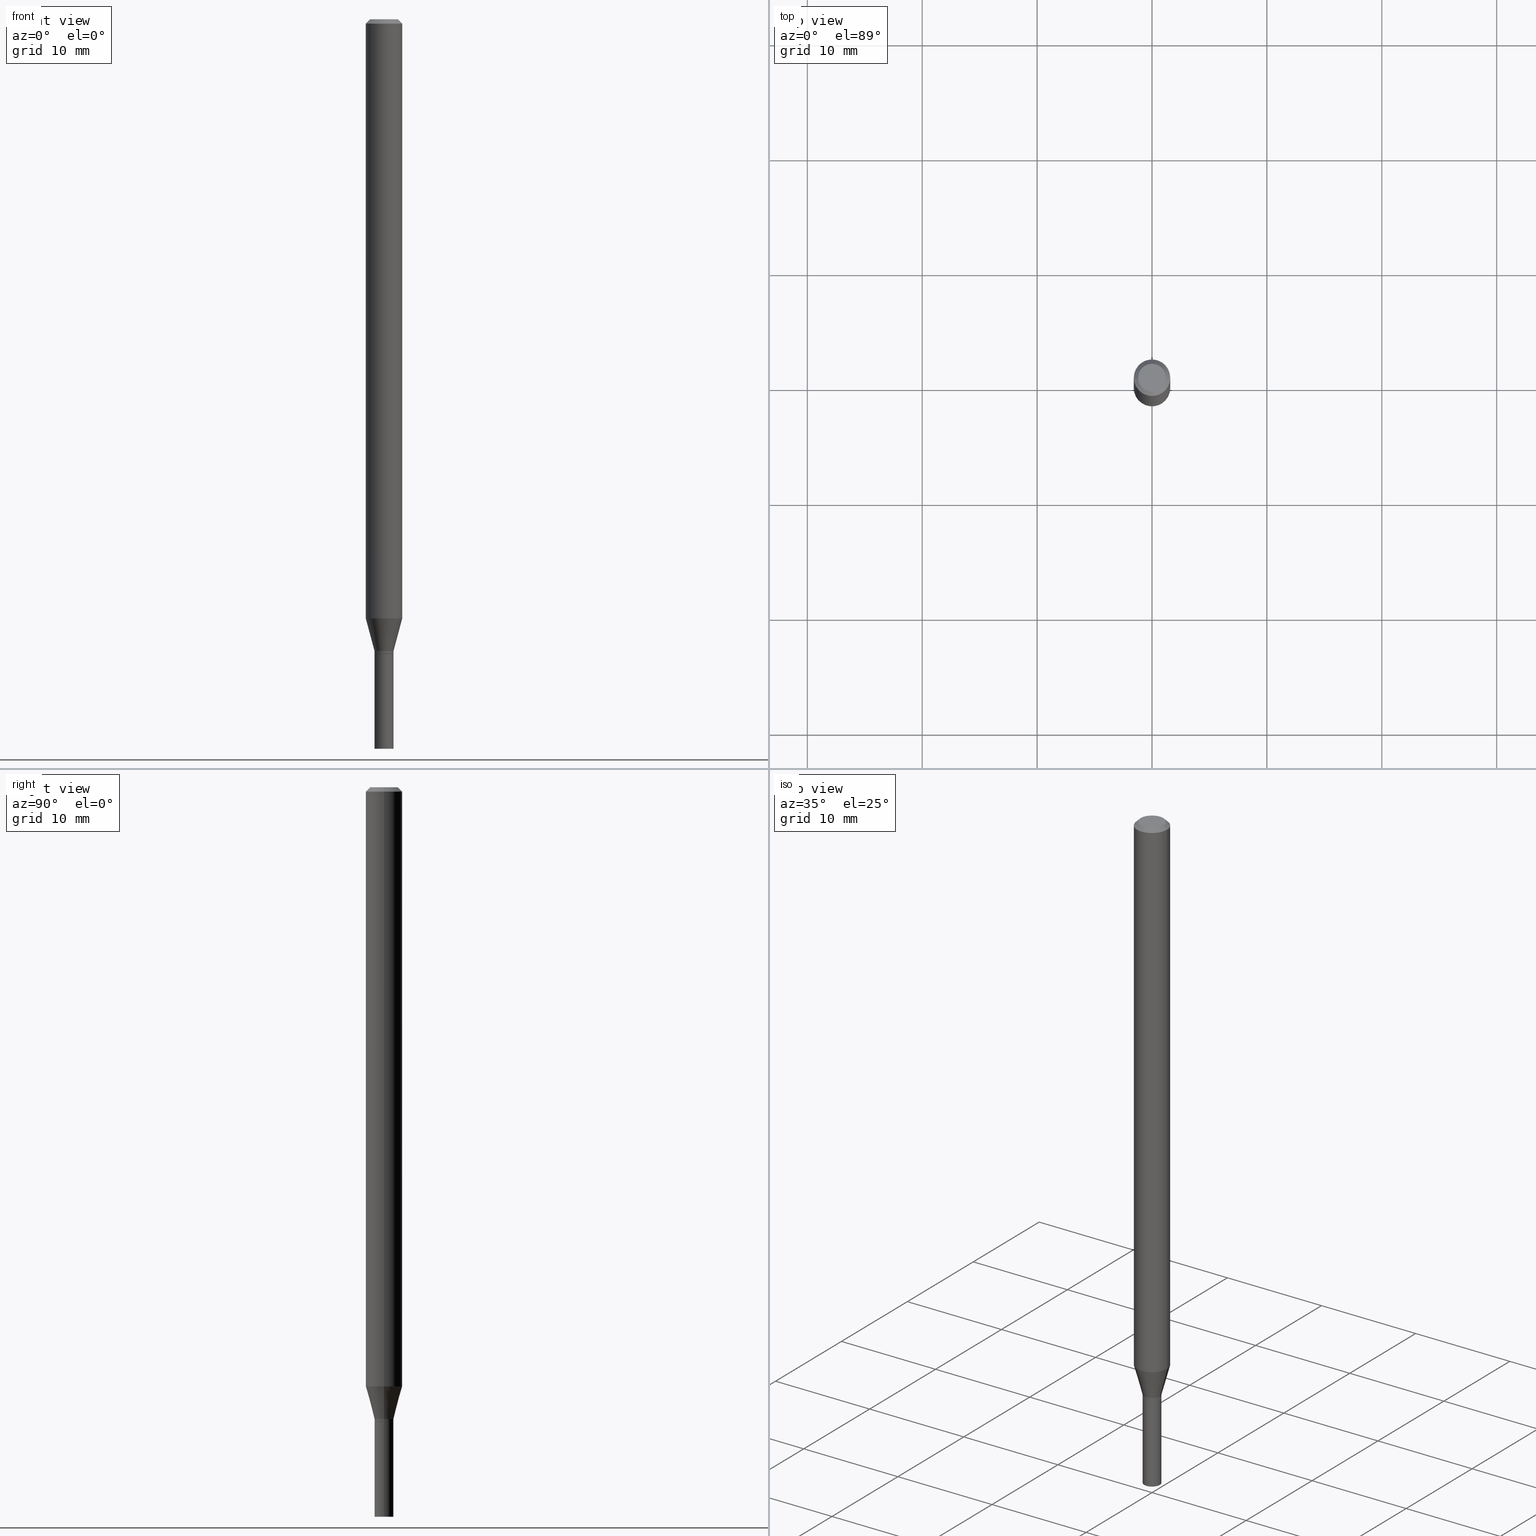
[diagram: canonical four-view strip — front | top / right | iso, engineering-drawing reading convention]
A machine part, canonical four-view strip (front | top / right | iso — engineering-drawing reading convention). The complete STEP part file that produces these views, byte-faithful:
ISO-10303-21;
HEADER;
FILE_DESCRIPTION (( 'STEP AP203' ),
    '1' );
FILE_NAME ('00598.STEP',
    '2024-03-19T21:56:55',
    ( '' ),
    ( '' ),
    'SwSTEP 2.0',
    'SolidWorks 2023',
    '' );
FILE_SCHEMA (( 'CONFIG_CONTROL_DESIGN' ));
ENDSEC;

DATA;
#1 = EDGE_CURVE ( 'NONE', #159, #99, #162, .T. ) ;
#2 = DIRECTION ( 'NONE',  ( -0.7071067811865656694, 7.493145998870420424E-15, 0.7071067811865294761 ) ) ;
#3 = DIRECTION ( 'NONE',  ( -2.445468806185136597E-29, 3.491481338843145583E-15, 1.000000000000000000 ) ) ;
#4 = APPLICATION_CONTEXT ( 'configuration controlled 3d designs of mechanical parts and assemblies' ) ;
#5 = CC_DESIGN_APPROVAL ( #409, ( #376 ) ) ;
#6 = DIRECTION ( 'NONE',  ( 1.000000000000000000, -6.982962677686265922E-15, 4.876176775795935793E-29 ) ) ;
#7 = AXIS2_PLACEMENT_3D ( 'NONE', #108, #390, #68 ) ;
#8 = CARTESIAN_POINT ( 'NONE',  ( 0.04749999999999999362, -4.035134999187581581E-16, -1.869615573468310694E-16 ) ) ;
#9 = FACE_OUTER_BOUND ( 'NONE', #294, .T. ) ;
#10 = ADVANCED_FACE ( 'NONE', ( #58 ), #198, .T. ) ;
#11 = DIRECTION ( 'NONE',  ( 1.000000000000000000, -6.982962677686262766E-15, 0.000000000000000000 ) ) ;
#12 = AXIS2_PLACEMENT_3D ( 'NONE', #83, #223, #186 ) ;
#13 = VERTEX_POINT ( 'NONE', #122 ) ;
#14 = AXIS2_PLACEMENT_3D ( 'NONE', #17, #297, #293 ) ;
#15 = EDGE_CURVE ( 'NONE', #456, #269, #381, .T. ) ;
#16 = DIRECTION ( 'NONE',  ( -2.445468806185136597E-29, 3.491481338843145583E-15, 1.000000000000000000 ) ) ;
#17 = CARTESIAN_POINT ( 'NONE',  ( 3.668203209277705088E-31, -5.237222008264718399E-17, -0.01499999999999999944 ) ) ;
#18 = EDGE_CURVE ( 'NONE', #178, #339, #29, .T. ) ;
#19 = FACE_OUTER_BOUND ( 'NONE', #354, .T. ) ;
#20 = ORIENTED_EDGE ( 'NONE', *, *, #15, .F. ) ;
#21 = VECTOR ( 'NONE', #298, 39.37007874015748143 ) ;
#22 = CIRCLE ( 'NONE', #90, 0.03200000000000000067 ) ;
#23 = VECTOR ( 'NONE', #59, 39.37007874015748143 ) ;
#24 = APPLICATION_PROTOCOL_DEFINITION ( 'international standard', 'config_control_design', 1994, #314 ) ;
#25 = DIRECTION ( 'NONE',  ( 1.000000000000000000, -6.982962677686271444E-15, 0.000000000000000000 ) ) ;
#26 = ORIENTED_EDGE ( 'NONE', *, *, #64, .F. ) ;
#27 = EDGE_CURVE ( 'NONE', #99, #352, #446, .T. ) ;
#28 = DIRECTION ( 'NONE',  ( 1.000000000000000000, -6.982962677686258033E-15, 0.000000000000000000 ) ) ;
#29 = LINE ( 'NONE', #74, #189 ) ;
#30 = DIRECTION ( 'NONE',  ( -2.445468806185136597E-29, 3.491481338843145583E-15, 1.000000000000000000 ) ) ;
#31 = ORIENTED_EDGE ( 'NONE', *, *, #177, .T. ) ;
#32 = CALENDAR_DATE ( 2024, 19, 3 ) ;
#33 = EDGE_LOOP ( 'NONE', ( #219, #224, #239, #371 ) ) ;
#34 = PERSON_AND_ORGANIZATION_ROLE ( 'design_supplier' ) ;
#35 = LINE ( 'NONE', #244, #416 ) ;
#36 = EDGE_CURVE ( 'NONE', #253, #456, #22, .T. ) ;
#37 = EDGE_CURVE ( 'NONE', #99, #178, #35, .T. ) ;
#38 = DIRECTION ( 'NONE',  ( -0.2588190451025210725, 5.211531920934548675E-15, 0.9659258262890682012 ) ) ;
#39 = DIRECTION ( 'NONE',  ( -2.445468806185136597E-29, 3.491481338843145583E-15, 1.000000000000000000 ) ) ;
#40 = CIRCLE ( 'NONE', #226, 0.04749999999999999362 ) ;
#41 = FACE_OUTER_BOUND ( 'NONE', #150, .T. ) ;
#42 = AXIS2_PLACEMENT_3D ( 'NONE', #106, #434, #396 ) ;
#43 = ADVANCED_FACE ( 'NONE', ( #70 ), #101, .F. ) ;
#44 = AXIS2_PLACEMENT_3D ( 'NONE', #192, #341, #25 ) ;
#45 = DIRECTION ( 'NONE',  ( -2.438088387897960049E-29, 3.491481338843145188E-15, 1.000000000000000000 ) ) ;
#46 = LINE ( 'NONE', #147, #21 ) ;
#47 = CARTESIAN_POINT ( 'NONE',  ( 0.000000000000000000, 0.000000000000000000, 0.000000000000000000 ) ) ;
#48 = LOCAL_TIME ( 17, 56, 55.00000000000000000, #161 ) ;
#49 = CIRCLE ( 'NONE', #104, 0.03200000000000000067 ) ;
#50 = EDGE_CURVE ( 'NONE', #377, #301, #349, .T. ) ;
#51 = DIRECTION ( 'NONE',  ( -2.445468806185136877E-29, 3.491481338843145188E-15, 1.000000000000000000 ) ) ;
#52 = ORIENTED_EDGE ( 'NONE', *, *, #440, .F. ) ;
#53 = DIRECTION ( 'NONE',  ( 1.000000000000000000, -6.982962677686266711E-15, 4.876176775795935793E-29 ) ) ;
#54 = ORIENTED_EDGE ( 'NONE', *, *, #439, .F. ) ;
#55 = ORIENTED_EDGE ( 'NONE', *, *, #394, .T. ) ;
#56 = CIRCLE ( 'NONE', #98, 0.03250000000000018846 ) ;
#57 = DIRECTION ( 'NONE',  ( 0.000000000000000000, 0.000000000000000000, 1.000000000000000000 ) ) ;
#58 = FACE_OUTER_BOUND ( 'NONE', #155, .T. ) ;
#59 = DIRECTION ( 'NONE',  ( 0.2588190451025210725, 1.565188264969624137E-15, 0.9659258262890682012 ) ) ;
#60 = DIRECTION ( 'NONE',  ( -2.445468806185136877E-29, 3.491481338843145188E-15, 1.000000000000000000 ) ) ;
#61 = APPLICATION_PROTOCOL_DEFINITION ( 'international standard', 'config_control_design', 1994, #4 ) ;
#62 = ORIENTED_EDGE ( 'NONE', *, *, #50, .F. ) ;
#63 = AXIS2_PLACEMENT_3D ( 'NONE', #158, #263, #199 ) ;
#64 = EDGE_CURVE ( 'NONE', #448, #301, #249, .T. ) ;
#65 = CIRCLE ( 'NONE', #324, 0.03249999999999992478 ) ;
#66 = ORIENTED_EDGE ( 'NONE', *, *, #15, .T. ) ;
#67 = ORIENTED_EDGE ( 'NONE', *, *, #93, .T. ) ;
#68 = DIRECTION ( 'NONE',  ( 1.000000000000000000, -6.982962677686267499E-15, 4.852736867747366768E-29 ) ) ;
#69 = PERSON_AND_ORGANIZATION ( #167, #258 ) ;
#70 = FACE_OUTER_BOUND ( 'NONE', #88, .T. ) ;
#71 = PERSON_AND_ORGANIZATION ( #167, #258 ) ;
#72 = CARTESIAN_POINT ( 'NONE',  ( 5.318894653452672995E-29, -7.593971911983841869E-15, -2.175000000000000266 ) ) ;
#73 = APPROVAL_ROLE ( '' ) ;
#74 = CARTESIAN_POINT ( 'NONE',  ( -0.06250000000000000000, 4.440892098500626162E-16, -3.074334431409316114E-30 ) ) ;
#75 = LOCAL_TIME ( 17, 56, 55.00000000000000000, #435 ) ;
#76 = DIRECTION ( 'NONE',  ( -2.445468806185136597E-29, 3.491481338843145583E-15, 1.000000000000000000 ) ) ;
#77 = AXIS2_PLACEMENT_3D ( 'NONE', #47, #333, #53 ) ;
#78 = PLANE ( 'NONE',  #414 ) ;
#79 = EDGE_CURVE ( 'NONE', #411, #448, #236, .T. ) ;
#80 = ORIENTED_EDGE ( 'NONE', *, *, #1, .T. ) ;
#81 = CARTESIAN_POINT ( 'NONE',  ( 0.000000000000000000, 0.000000000000000000, 0.000000000000000000 ) ) ;
#82 = ORIENTED_EDGE ( 'NONE', *, *, #227, .F. ) ;
#83 = CARTESIAN_POINT ( 'NONE',  ( 0.000000000000000000, 0.000000000000000000, 0.000000000000000000 ) ) ;
#84 = VECTOR ( 'NONE', #166, 39.37007874015748143 ) ;
#85 = FACE_OUTER_BOUND ( 'NONE', #350, .T. ) ;
#86 = EDGE_LOOP ( 'NONE', ( #373, #120, #214, #453 ) ) ;
#87 = CARTESIAN_POINT ( 'NONE',  ( -0.03200000000000000067, -7.363949009366499195E-15, -2.175000000000000266 ) ) ;
#88 = EDGE_LOOP ( 'NONE', ( #126, #404 ) ) ;
#89 = LOCAL_TIME ( 17, 56, 55.00000000000000000, #105 ) ;
#90 = AXIS2_PLACEMENT_3D ( 'NONE', #202, #438, #250 ) ;
#91 = PLANE ( 'NONE',  #123 ) ;
#92 = PRODUCT_DEFINITION_SHAPE ( 'NONE', 'NONE',  #389 ) ;
#93 = EDGE_CURVE ( 'NONE', #153, #379, #357, .T. ) ;
#94 = LINE ( 'NONE', #457, #23 ) ;
#95 = DIRECTION ( 'NONE',  ( 1.000000000000000000, -6.982962677686266711E-15, 0.000000000000000000 ) ) ;
#96 = VERTEX_POINT ( 'NONE', #247 ) ;
#97 = LOCAL_TIME ( 17, 56, 55.00000000000000000, #284 ) ;
#98 = AXIS2_PLACEMENT_3D ( 'NONE', #141, #39, #212 ) ;
#99 = VERTEX_POINT ( 'NONE', #103 ) ;
#100 = DIRECTION ( 'NONE',  ( 1.000000000000000000, -6.982962677686276966E-15, 0.000000000000000000 ) ) ;
#101 = PLANE ( 'NONE',  #139 ) ;
#102 = SHAPE_DEFINITION_REPRESENTATION ( #92, #367 ) ;
#103 = CARTESIAN_POINT ( 'NONE',  ( -0.03250000000000018846, -7.026093512855745805E-15, -2.165000000000000036 ) ) ;
#104 = AXIS2_PLACEMENT_3D ( 'NONE', #259, #215, #149 ) ;
#105 = COORDINATED_UNIVERSAL_TIME_OFFSET ( 5, 0, .BEHIND. ) ;
#106 = CARTESIAN_POINT ( 'NONE',  ( 0.000000000000000000, 0.000000000000000000, 0.000000000000000000 ) ) ;
#107 = APPROVAL_DATE_TIME ( #287, #409 ) ;
#108 = CARTESIAN_POINT ( 'NONE',  ( 4.572086564474752109E-45, -6.527727885575223091E-31, -1.869615573468336332E-16 ) ) ;
#109 = DIRECTION ( 'NONE',  ( -2.445468806185136597E-29, 3.491481338843145583E-15, 1.000000000000000000 ) ) ;
#110 = EDGE_LOOP ( 'NONE', ( #190, #200 ) ) ;
#111 = FACE_OUTER_BOUND ( 'NONE', #424, .T. ) ;
#112 = CYLINDRICAL_SURFACE ( 'NONE', #395, 0.03250000000000005662 ) ;
#113 = CYLINDRICAL_SURFACE ( 'NONE', #458, 0.06250000000000000000 ) ;
#114 = CIRCLE ( 'NONE', #172, 0.06250000000000000000 ) ;
#115 = ORIENTED_EDGE ( 'NONE', *, *, #323, .T. ) ;
#116 = PRODUCT ( '00598', '00598', '', ( #460 ) ) ;
#117 = DIRECTION ( 'NONE',  ( 1.000000000000000000, -6.982962677686265922E-15, 4.876176775795935232E-29 ) ) ;
#118 = ADVANCED_FACE ( 'NONE', ( #281 ), #429, .T. ) ;
#119 = LINE ( 'NONE', #415, #245 ) ;
#120 = ORIENTED_EDGE ( 'NONE', *, *, #203, .T. ) ;
#121 = EDGE_CURVE ( 'NONE', #253, #159, #361, .T. ) ;
#122 = CARTESIAN_POINT ( 'NONE',  ( -0.04749999999999999362, 3.578768372314207548E-16, -1.869615573468360244E-16 ) ) ;
#123 = AXIS2_PLACEMENT_3D ( 'NONE', #127, #230, #154 ) ;
#124 = CIRCLE ( 'NONE', #246, 0.06250000000000000000 ) ;
#125 = CARTESIAN_POINT ( 'NONE',  ( 3.668203209277705088E-31, -5.237222008264718399E-17, -0.01499999999999999944 ) ) ;
#126 = ORIENTED_EDGE ( 'NONE', *, *, #79, .F. ) ;
#127 = CARTESIAN_POINT ( 'NONE',  ( 2.269462870248568472E-16, 0.03249999999999240302, -2.175000000000000266 ) ) ;
#128 = ORIENTED_EDGE ( 'NONE', *, *, #412, .F. ) ;
#129 = CARTESIAN_POINT ( 'NONE',  ( 3.668203209277705088E-31, -5.237222008264718399E-17, -0.01499999999999999944 ) ) ;
#130 = ORIENTED_EDGE ( 'NONE', *, *, #328, .T. ) ;
#131 = DIRECTION ( 'NONE',  ( -2.445468806185136597E-29, 3.491481338843145583E-15, 1.000000000000000000 ) ) ;
#132 = PERSON_AND_ORGANIZATION ( #167, #258 ) ;
#133 = CARTESIAN_POINT ( 'NONE',  ( 5.294439965390820328E-29, -7.559057098595410220E-15, -2.165000000000000036 ) ) ;
#134 = PERSON_AND_ORGANIZATION ( #167, #258 ) ;
#135 = DIRECTION ( 'NONE',  ( 1.000000000000000000, -6.982962677686287221E-15, 0.000000000000000000 ) ) ;
#136 = ADVANCED_FACE ( 'NONE', ( #41 ), #175, .T. ) ;
#137 = ORIENTED_EDGE ( 'NONE', *, *, #188, .F. ) ;
#138 = DIRECTION ( 'NONE',  ( -0.7071067811865520136, 2.468850131082303998E-15, -0.7071067811865430208 ) ) ;
#139 = AXIS2_PLACEMENT_3D ( 'NONE', #436, #45, #6 ) ;
#140 = DATE_AND_TIME ( #465, #89 ) ;
#141 = CARTESIAN_POINT ( 'NONE',  ( 5.294439965390820328E-29, -7.559057098595410220E-15, -2.165000000000000036 ) ) ;
#142 = DIRECTION ( 'NONE',  ( 1.000000000000000000, -6.982962677686271444E-15, 0.000000000000000000 ) ) ;
#143 = CC_DESIGN_PERSON_AND_ORGANIZATION_ASSIGNMENT ( #187, #337, ( #116 ) ) ;
#144 = CARTESIAN_POINT ( 'NONE',  ( 5.318894653452672995E-29, -7.593971911983841869E-15, -2.175000000000000266 ) ) ;
#145 = VECTOR ( 'NONE', #138, 39.37007874015748143 ) ;
#146 = ORIENTED_EDGE ( 'NONE', *, *, #181, .F. ) ;
#147 = CARTESIAN_POINT ( 'NONE',  ( 0.03250000000000000111, -2.269462870248036484E-16, 1.584757452133678993E-30 ) ) ;
#148 = UNCERTAINTY_MEASURE_WITH_UNIT (LENGTH_MEASURE( 1.000000000000000082E-05 ), #340, 'distance_accuracy_value', 'NONE');
#149 = DIRECTION ( 'NONE',  ( 1.000000000000000000, -6.982962677686271444E-15, 0.000000000000000000 ) ) ;
#150 = EDGE_LOOP ( 'NONE', ( #265, #197, #255, #82 ) ) ;
#151 = DIRECTION ( 'NONE',  ( 1.000000000000000000, -6.982962677686262766E-15, 0.000000000000000000 ) ) ;
#152 = CONICAL_SURFACE ( 'NONE', #317, 0.03200000000000000067, 0.7853981633974739252 ) ;
#153 = VERTEX_POINT ( 'NONE', #8 ) ;
#154 = DIRECTION ( 'NONE',  ( -1.000000000000000000, 6.982962677686265922E-15, -4.876176775795935793E-29 ) ) ;
#155 = EDGE_LOOP ( 'NONE', ( #193, #307, #66, #366 ) ) ;
#156 = EDGE_CURVE ( 'NONE', #352, #99, #56, .T. ) ;
#157 = DIRECTION ( 'NONE',  ( -2.445468806185136597E-29, 3.491481338843145583E-15, 1.000000000000000000 ) ) ;
#158 = CARTESIAN_POINT ( 'NONE',  ( 6.113672015462842613E-29, -8.728703347107864943E-15, -2.500000000000000000 ) ) ;
#159 = VERTEX_POINT ( 'NONE', #399 ) ;
#160 = DIRECTION ( 'NONE',  ( -2.445468806185136877E-29, 3.491481338843145188E-15, 1.000000000000000000 ) ) ;
#161 = COORDINATED_UNIVERSAL_TIME_OFFSET ( 5, 0, .BEHIND. ) ;
#162 = LINE ( 'NONE', #454, #311 ) ;
#163 = CC_DESIGN_DATE_AND_TIME_ASSIGNMENT ( #140, #353, ( #389 ) ) ;
#164 = CC_DESIGN_APPROVAL ( #292, ( #191 ) ) ;
#165 = DATE_AND_TIME ( #209, #97 ) ;
#166 = DIRECTION ( 'NONE',  ( -2.445468806185136877E-29, 3.491481338843145188E-15, 1.000000000000000000 ) ) ;
#167 = PERSON ( 'UNSPECIFIED', 'UNSPECIFIED', 'UNSPECIFIED', ('UNSPECIFIED'), ('UNSPECIFIED'), ('UNSPECIFIED') ) ;
#168 = ADVANCED_FACE ( 'NONE', ( #171 ), #407, .T. ) ;
#169 = DIRECTION ( 'NONE',  ( -2.445468806185136597E-29, 3.491481338843145583E-15, 1.000000000000000000 ) ) ;
#170 = APPROVAL_ROLE ( '' ) ;
#171 = FACE_OUTER_BOUND ( 'NONE', #33, .T. ) ;
#172 = AXIS2_PLACEMENT_3D ( 'NONE', #125, #420, #312 ) ;
#173 = PERSON_AND_ORGANIZATION_ROLE ( 'creator' ) ;
#174 = CARTESIAN_POINT ( 'NONE',  ( 5.294439965390820328E-29, -7.559057098595410220E-15, -2.165000000000000036 ) ) ;
#175 = CONICAL_SURFACE ( 'NONE', #369, 0.03250000000000018846, 0.2617993877991497409 ) ;
#176 = DIRECTION ( 'NONE',  ( -2.445468806185136597E-29, 3.491481338843145583E-15, 1.000000000000000000 ) ) ;
#177 = EDGE_CURVE ( 'NONE', #13, #339, #241, .T. ) ;
#178 = VERTEX_POINT ( 'NONE', #283 ) ;
#179 = CARTESIAN_POINT ( 'NONE',  ( 0.03250000000000005662, -2.269462870248040428E-16, 1.584757452133681795E-30 ) ) ;
#180 = EDGE_LOOP ( 'NONE', ( #26, #375, #276, #54 ) ) ;
#181 = EDGE_CURVE ( 'NONE', #153, #13, #362, .T. ) ;
#182 = APPROVAL_PERSON_ORGANIZATION ( #132, #347, #170 ) ;
#183 = CARTESIAN_POINT ( 'NONE',  ( 0.03250000000000018846, -7.786003385620215150E-15, -2.165000000000000036 ) ) ;
#184 = AXIS2_PLACEMENT_3D ( 'NONE', #133, #131, #100 ) ;
#185 = CARTESIAN_POINT ( 'NONE',  ( 0.06250000000000000000, -4.888073874380388472E-16, -0.01499999999999999944 ) ) ;
#186 = DIRECTION ( 'NONE',  ( 1.000000000000000000, -6.982962677686265922E-15, 4.876176775795935232E-29 ) ) ;
#187 = PERSON_AND_ORGANIZATION ( #167, #258 ) ;
#188 = EDGE_CURVE ( 'NONE', #269, #159, #401, .T. ) ;
#189 = VECTOR ( 'NONE', #466, 39.37007874015748143 ) ;
#190 = ORIENTED_EDGE ( 'NONE', *, *, #463, .T. ) ;
#191 = SECURITY_CLASSIFICATION ( '', '', #356 ) ;
#192 = CARTESIAN_POINT ( 'NONE',  ( 5.318894653452672995E-29, -7.593971911983841869E-15, -2.175000000000000266 ) ) ;
#193 = ORIENTED_EDGE ( 'NONE', *, *, #121, .F. ) ;
#194 = DIRECTION ( 'NONE',  ( -2.445468806185136597E-29, 3.491481338843145583E-15, 1.000000000000000000 ) ) ;
#195 = DIRECTION ( 'NONE',  ( 0.7071067811865656694, -2.468850131082446387E-15, 0.7071067811865294761 ) ) ;
#196 = EDGE_LOOP ( 'NONE', ( #264, #216 ) ) ;
#197 = ORIENTED_EDGE ( 'NONE', *, *, #27, .T. ) ;
#198 = CONICAL_SURFACE ( 'NONE', #44, 0.03200000000000000067, 0.7853981633974739252 ) ;
#199 = DIRECTION ( 'NONE',  ( 1.000000000000000000, -6.982962677686287221E-15, 0.000000000000000000 ) ) ;
#200 = ORIENTED_EDGE ( 'NONE', *, *, #181, .T. ) ;
#201 = ORIENTED_EDGE ( 'NONE', *, *, #227, .T. ) ;
#202 = CARTESIAN_POINT ( 'NONE',  ( 5.318894653452672995E-29, -7.593971911983841869E-15, -2.175000000000000266 ) ) ;
#203 = EDGE_CURVE ( 'NONE', #159, #269, #65, .T. ) ;
#204 = AXIS2_PLACEMENT_3D ( 'NONE', #329, #109, #11 ) ;
#205 = PERSON_AND_ORGANIZATION ( #167, #258 ) ;
#206 = DIRECTION ( 'NONE',  ( 1.000000000000000000, -6.982962677686276966E-15, 0.000000000000000000 ) ) ;
#207 = APPROVAL_STATUS ( 'not_yet_approved' ) ;
#208 = DIRECTION ( 'NONE',  ( 1.000000000000000000, -6.982962677686258033E-15, 0.000000000000000000 ) ) ;
#209 = CALENDAR_DATE ( 2024, 19, 3 ) ;
#210 = DIRECTION ( 'NONE',  ( -2.445468806185136597E-29, 3.491481338843145583E-15, 1.000000000000000000 ) ) ;
#211 = VECTOR ( 'NONE', #2, 39.37007874015748143 ) ;
#212 = DIRECTION ( 'NONE',  ( 1.000000000000000000, -6.982962677686276966E-15, 0.000000000000000000 ) ) ;
#213 = CARTESIAN_POINT ( 'NONE',  ( 0.000000000000000000, 0.000000000000000000, 0.000000000000000000 ) ) ;
#214 = ORIENTED_EDGE ( 'NONE', *, *, #378, .T. ) ;
#215 = DIRECTION ( 'NONE',  ( -2.445468806185136597E-29, 3.491481338843145583E-15, 1.000000000000000000 ) ) ;
#216 = ORIENTED_EDGE ( 'NONE', *, *, #439, .T. ) ;
#217 = CYLINDRICAL_SURFACE ( 'NONE', #12, 0.03250000000000000111 ) ;
#218 = AXIS2_PLACEMENT_3D ( 'NONE', #213, #374, #334 ) ;
#219 = ORIENTED_EDGE ( 'NONE', *, *, #156, .T. ) ;
#220 = PRODUCT_RELATED_PRODUCT_CATEGORY ( 'detail', '', ( #116 ) ) ;
#221 = FACE_OUTER_BOUND ( 'NONE', #345, .T. ) ;
#222 = ORIENTED_EDGE ( 'NONE', *, *, #156, .F. ) ;
#223 = DIRECTION ( 'NONE',  ( -2.445468806185136597E-29, 3.491481338843145583E-15, 1.000000000000000000 ) ) ;
#224 = ORIENTED_EDGE ( 'NONE', *, *, #37, .T. ) ;
#225 = CARTESIAN_POINT ( 'NONE',  ( 0.03250000000000000111, -8.955649634132668295E-15, -2.500000000000000000 ) ) ;
#226 = AXIS2_PLACEMENT_3D ( 'NONE', #231, #194, #423 ) ;
#227 = EDGE_CURVE ( 'NONE', #178, #96, #338, .T. ) ;
#228 = ORIENTED_EDGE ( 'NONE', *, *, #394, .F. ) ;
#229 = AXIS2_PLACEMENT_3D ( 'NONE', #72, #210, #208 ) ;
#230 = DIRECTION ( 'NONE',  ( 2.438088387897960049E-29, -3.491481338843145188E-15, -1.000000000000000000 ) ) ;
#231 = CARTESIAN_POINT ( 'NONE',  ( 4.572086564474752109E-45, -6.527727885575223091E-31, -1.869615573468336332E-16 ) ) ;
#232 = DIRECTION ( 'NONE',  ( -1.000000000000000000, 6.982962677686266711E-15, 0.000000000000000000 ) ) ;
#233 = DESIGN_CONTEXT ( 'detailed design', #314, 'design' ) ;
#234 = ADVANCED_FACE ( 'NONE', ( #406 ), #152, .T. ) ;
#235 = LOCAL_TIME ( 17, 56, 55.00000000000000000, #248 ) ;
#236 = CIRCLE ( 'NONE', #425, 0.03250000000000000111 ) ;
#237 = CC_DESIGN_PERSON_AND_ORGANIZATION_ASSIGNMENT ( #71, #325, ( #376 ) ) ;
#238 = DIRECTION ( 'NONE',  ( -1.000000000000000000, 6.982962677686265922E-15, -4.876176775795935793E-29 ) ) ;
#239 = ORIENTED_EDGE ( 'NONE', *, *, #323, .F. ) ;
#240 = ORIENTED_EDGE ( 'NONE', *, *, #188, .T. ) ;
#241 = LINE ( 'NONE', #291, #145 ) ;
#242 = ADVANCED_FACE ( 'NONE', ( #111 ), #386, .T. ) ;
#243 = PERSON_AND_ORGANIZATION ( #167, #258 ) ;
#244 = CARTESIAN_POINT ( 'NONE',  ( -0.03250000000000018846, -7.328130709473376271E-15, -2.165000000000000036 ) ) ;
#245 = VECTOR ( 'NONE', #160, 39.37007874015748143 ) ;
#246 = AXIS2_PLACEMENT_3D ( 'NONE', #372, #176, #151 ) ;
#247 = CARTESIAN_POINT ( 'NONE',  ( 0.06250000000000000000, -7.604580693443568046E-15, -2.053038475772934746 ) ) ;
#248 = COORDINATED_UNIVERSAL_TIME_OFFSET ( 5, 0, .BEHIND. ) ;
#249 = LINE ( 'NONE', #320, #84 ) ;
#250 = DIRECTION ( 'NONE',  ( 1.000000000000000000, -6.982962677686271444E-15, 0.000000000000000000 ) ) ;
#251 = CC_DESIGN_APPROVAL ( #347, ( #389 ) ) ;
#252 = DIRECTION ( 'NONE',  ( -2.445468806185136597E-29, 3.491481338843145583E-15, 1.000000000000000000 ) ) ;
#253 = VERTEX_POINT ( 'NONE', #87 ) ;
#254 = CARTESIAN_POINT ( 'NONE',  ( 5.318894653452672995E-29, -7.593971911983841869E-15, -2.175000000000000266 ) ) ;
#255 = ORIENTED_EDGE ( 'NONE', *, *, #451, .T. ) ;
#256 = CARTESIAN_POINT ( 'NONE',  ( 0.000000000000000000, 0.000000000000000000, 0.000000000000000000 ) ) ;
#257 = CC_DESIGN_PERSON_AND_ORGANIZATION_ASSIGNMENT ( #205, #34, ( #376 ) ) ;
#258 = ORGANIZATION ( 'UNSPECIFIED', 'UNSPECIFIED', '' ) ;
#259 = CARTESIAN_POINT ( 'NONE',  ( 5.318894653452672995E-29, -7.593971911983841869E-15, -2.175000000000000266 ) ) ;
#260 = AXIS2_PLACEMENT_3D ( 'NONE', #400, #431, #321 ) ;
#261 = ORIENTED_EDGE ( 'NONE', *, *, #412, .T. ) ;
#262 = CARTESIAN_POINT ( 'NONE',  ( 3.316907271900976096E-16, 0.04749999999999999362, -2.593261422684662377E-16 ) ) ;
#263 = DIRECTION ( 'NONE',  ( -2.445468806185136597E-29, 3.491481338843145583E-15, 1.000000000000000000 ) ) ;
#264 = ORIENTED_EDGE ( 'NONE', *, *, #50, .T. ) ;
#265 = ORIENTED_EDGE ( 'NONE', *, *, #37, .F. ) ;
#266 =( NAMED_UNIT ( * ) PLANE_ANGLE_UNIT ( ) SI_UNIT ( $, .RADIAN. ) );
#267 = CARTESIAN_POINT ( 'NONE',  ( 0.03200000000000000067, -7.817426717669802214E-15, -2.175000000000000266 ) ) ;
#268 = AXIS2_PLACEMENT_3D ( 'NONE', #254, #447, #405 ) ;
#269 = VERTEX_POINT ( 'NONE', #335 ) ;
#270 = DIRECTION ( 'NONE',  ( 1.000000000000000000, 0.000000000000000000, 0.000000000000000000 ) ) ;
#271 = EDGE_LOOP ( 'NONE', ( #275, #418, #31, #261 ) ) ;
#272 = FACE_OUTER_BOUND ( 'NONE', #271, .T. ) ;
#273 = CC_DESIGN_PERSON_AND_ORGANIZATION_ASSIGNMENT ( #243, #173, ( #389 ) ) ;
#274 = DIRECTION ( 'NONE',  ( 2.445468806185136597E-29, -3.491481338843145583E-15, -1.000000000000000000 ) ) ;
#275 = ORIENTED_EDGE ( 'NONE', *, *, #93, .F. ) ;
#276 = ORIENTED_EDGE ( 'NONE', *, *, #360, .T. ) ;
#277 = VECTOR ( 'NONE', #285, 39.37007874015748143 ) ;
#278 = MANIFOLD_SOLID_BREP ( 'Body-Move/Copy2[1]', #304 ) ;
#279 = AXIS2_PLACEMENT_3D ( 'NONE', #380, #274, #232 ) ;
#280 = PERSON_AND_ORGANIZATION ( #167, #258 ) ;
#281 = FACE_OUTER_BOUND ( 'NONE', #180, .T. ) ;
#282 = CALENDAR_DATE ( 2024, 19, 3 ) ;
#283 = CARTESIAN_POINT ( 'NONE',  ( -0.06250000000000000000, -6.724056316238114549E-15, -2.053038475772934746 ) ) ;
#284 = COORDINATED_UNIVERSAL_TIME_OFFSET ( 5, 0, .BEHIND. ) ;
#285 = DIRECTION ( 'NONE',  ( 0.7071067811865520136, -7.319954787623270245E-15, -0.7071067811865430208 ) ) ;
#286 = VECTOR ( 'NONE', #195, 39.37007874015748143 ) ;
#287 = DATE_AND_TIME ( #428, #48 ) ;
#288 = CARTESIAN_POINT ( 'NONE',  ( 5.317671919049580193E-29, -7.592226171314421154E-15, -2.174500000000000099 ) ) ;
#289 = APPROVAL_STATUS ( 'not_yet_approved' ) ;
#290 = ADVANCED_FACE ( 'NONE', ( #452 ), #112, .T. ) ;
#291 = CARTESIAN_POINT ( 'NONE',  ( -0.06250000000000000000, 3.840629472727444916E-16, -0.01499999999999999944 ) ) ;
#292 = APPROVAL ( #289, 'UNSPECIFIED' ) ;
#293 = DIRECTION ( 'NONE',  ( -1.000000000000000000, 6.982962677686266711E-15, 0.000000000000000000 ) ) ;
#294 = EDGE_LOOP ( 'NONE', ( #115, #417, #52, #228 ) ) ;
#295 = ADVANCED_FACE ( 'NONE', ( #19 ), #300, .F. ) ;
#296 = AXIS2_PLACEMENT_3D ( 'NONE', #358, #3, #206 ) ;
#297 = DIRECTION ( 'NONE',  ( 2.445468806185136597E-29, -3.491481338843145583E-15, -1.000000000000000000 ) ) ;
#298 = DIRECTION ( 'NONE',  ( -2.445468806185136877E-29, 3.491481338843145188E-15, 1.000000000000000000 ) ) ;
#299 = ORIENTED_EDGE ( 'NONE', *, *, #18, .F. ) ;
#300 = PLANE ( 'NONE',  #268 ) ;
#301 = VERTEX_POINT ( 'NONE', #450 ) ;
#302 = APPROVAL_PERSON_ORGANIZATION ( #280, #292, #73 ) ;
#303 = CARTESIAN_POINT ( 'NONE',  ( 0.03250000000000000111, -7.820918199008645222E-15, -2.175000000000000266 ) ) ;
#304 = CLOSED_SHELL ( 'NONE', ( #364, #43, #118, #397 ) ) ;
#305 = AXIS2_PLACEMENT_3D ( 'NONE', #383, #30, #28 ) ;
#306 = ADVANCED_FACE ( 'NONE', ( #9 ), #113, .T. ) ;
#307 = ORIENTED_EDGE ( 'NONE', *, *, #36, .T. ) ;
#308 = CC_DESIGN_PERSON_AND_ORGANIZATION_ASSIGNMENT ( #134, #315, ( #191 ) ) ;
#309 = CARTESIAN_POINT ( 'NONE',  ( 0.03200000000000000067, -7.817426717669802214E-15, -2.175000000000000266 ) ) ;
#310 = ORIENTED_EDGE ( 'NONE', *, *, #177, .F. ) ;
#311 = VECTOR ( 'NONE', #60, 39.37007874015748143 ) ;
#312 = DIRECTION ( 'NONE',  ( 1.000000000000000000, -6.982962677686266711E-15, 0.000000000000000000 ) ) ;
#313 = CC_DESIGN_DATE_AND_TIME_ASSIGNMENT ( #391, #430, ( #191 ) ) ;
#314 = APPLICATION_CONTEXT ( 'configuration controlled 3d designs of mechanical parts and assemblies' ) ;
#315 = PERSON_AND_ORGANIZATION_ROLE ( 'classification_officer' ) ;
#316 = CARTESIAN_POINT ( 'NONE',  ( 6.113672015462842613E-29, -8.728703347107864943E-15, -2.500000000000000000 ) ) ;
#317 = AXIS2_PLACEMENT_3D ( 'NONE', #144, #408, #142 ) ;
#318 = CARTESIAN_POINT ( 'NONE',  ( -0.03200000000000000067, -7.366598236540609608E-15, -2.175000000000000266 ) ) ;
#319 = APPROVAL_DATE_TIME ( #388, #347 ) ;
#320 = CARTESIAN_POINT ( 'NONE',  ( -0.03250000000000000111, 2.309263891220325683E-16, -1.598653904332844407E-30 ) ) ;
#321 = DIRECTION ( 'NONE',  ( 1.000000000000000000, -6.982962677686274599E-15, 0.000000000000000000 ) ) ;
#322 = AXIS2_PLACEMENT_3D ( 'NONE', #129, #157, #95 ) ;
#323 = EDGE_CURVE ( 'NONE', #96, #178, #124, .T. ) ;
#324 = AXIS2_PLACEMENT_3D ( 'NONE', #288, #76, #363 ) ;
#325 = PERSON_AND_ORGANIZATION_ROLE ( 'creator' ) ;
#326 = DIRECTION ( 'NONE',  ( 1.000000000000000000, -6.982962677686276966E-15, 0.000000000000000000 ) ) ;
#327 = CYLINDRICAL_SURFACE ( 'NONE', #77, 0.06250000000000000000 ) ;
#328 = EDGE_CURVE ( 'NONE', #456, #253, #49, .T. ) ;
#329 = CARTESIAN_POINT ( 'NONE',  ( 5.020641550400591076E-29, -7.168145526088176377E-15, -2.053038475772934746 ) ) ;
#330 = ORIENTED_EDGE ( 'NONE', *, *, #360, .F. ) ;
#331 = VECTOR ( 'NONE', #51, 39.37007874015748143 ) ;
#332 = CLOSED_SHELL ( 'NONE', ( #343, #234, #242, #306, #168, #136, #355, #432, #382, #295, #10, #290 ) ) ;
#333 = DIRECTION ( 'NONE',  ( -2.445468806185136597E-29, 3.491481338843145583E-15, 1.000000000000000000 ) ) ;
#334 = DIRECTION ( 'NONE',  ( 1.000000000000000000, -6.982962677686265922E-15, 4.876176775795935232E-29 ) ) ;
#335 = CARTESIAN_POINT ( 'NONE',  ( 0.03249999999999992478, -7.819172458339224507E-15, -2.174500000000000099 ) ) ;
#336 = APPROVAL_PERSON_ORGANIZATION ( #69, #409, #398 ) ;
#337 = PERSON_AND_ORGANIZATION_ROLE ( 'design_owner' ) ;
#338 = CIRCLE ( 'NONE', #204, 0.06250000000000000000 ) ;
#339 = VERTEX_POINT ( 'NONE', #365 ) ;
#340 =( CONVERSION_BASED_UNIT ( 'INCH', #344 ) LENGTH_UNIT ( ) NAMED_UNIT ( #441 ) );
#341 = DIRECTION ( 'NONE',  ( -2.445468806185136597E-29, 3.491481338843145583E-15, 1.000000000000000000 ) ) ;
#342 = ORIENTED_EDGE ( 'NONE', *, *, #64, .T. ) ;
#343 = ADVANCED_FACE ( 'NONE', ( #85 ), #443, .T. ) ;
#344 = LENGTH_MEASURE_WITH_UNIT ( LENGTH_MEASURE( 0.02539999999999999897 ), #455 );
#345 = EDGE_LOOP ( 'NONE', ( #299, #201, #55, #128 ) ) ;
#346 = EDGE_LOOP ( 'NONE', ( #130, #462, #137, #20 ) ) ;
#347 = APPROVAL ( #437, 'UNSPECIFIED' ) ;
#348 = FACE_OUTER_BOUND ( 'NONE', #196, .T. ) ;
#349 = CIRCLE ( 'NONE', #229, 0.03250000000000000111 ) ;
#350 = EDGE_LOOP ( 'NONE', ( #240, #80, #222, #459 ) ) ;
#351 =( NAMED_UNIT ( * ) SI_UNIT ( $, .STERADIAN. ) SOLID_ANGLE_UNIT ( ) );
#352 = VERTEX_POINT ( 'NONE', #183 ) ;
#353 = DATE_TIME_ROLE ( 'creation_date' ) ;
#354 = EDGE_LOOP ( 'NONE', ( #387, #419 ) ) ;
#355 = ADVANCED_FACE ( 'NONE', ( #221 ), #327, .T. ) ;
#356 = SECURITY_CLASSIFICATION_LEVEL ( 'unclassified' ) ;
#357 = LINE ( 'NONE', #392, #277 ) ;
#358 = CARTESIAN_POINT ( 'NONE',  ( 5.294439965390820328E-29, -7.559057098595410220E-15, -2.165000000000000036 ) ) ;
#359 = DIRECTION ( 'NONE',  ( -2.445468806185136597E-29, 3.491481338843145583E-15, 1.000000000000000000 ) ) ;
#360 = EDGE_CURVE ( 'NONE', #411, #377, #46, .T. ) ;
#361 = LINE ( 'NONE', #318, #211 ) ;
#362 = CIRCLE ( 'NONE', #7, 0.04749999999999999362 ) ;
#363 = DIRECTION ( 'NONE',  ( 1.000000000000000000, -6.982962677686274599E-15, 0.000000000000000000 ) ) ;
#364 = ADVANCED_FACE ( 'NONE', ( #449 ), #217, .T. ) ;
#365 = CARTESIAN_POINT ( 'NONE',  ( -0.06250000000000000000, -3.166169663235349703E-15, -0.01499999999999999944 ) ) ;
#366 = ORIENTED_EDGE ( 'NONE', *, *, #203, .F. ) ;
#367 = ADVANCED_BREP_SHAPE_REPRESENTATION ( '00598', ( #278, #442, #464 ), #426 ) ;
#368 = DIRECTION ( 'NONE',  ( 1.000000000000000000, -6.982962677686266711E-15, 4.876176775795935793E-29 ) ) ;
#369 = AXIS2_PLACEMENT_3D ( 'NONE', #174, #359, #326 ) ;
#370 = LINE ( 'NONE', #179, #331 ) ;
#371 = ORIENTED_EDGE ( 'NONE', *, *, #451, .F. ) ;
#372 = CARTESIAN_POINT ( 'NONE',  ( 5.020641550400591076E-29, -7.168145526088176377E-15, -2.053038475772934746 ) ) ;
#373 = ORIENTED_EDGE ( 'NONE', *, *, #1, .F. ) ;
#374 = DIRECTION ( 'NONE',  ( -2.445468806185136597E-29, 3.491481338843145583E-15, 1.000000000000000000 ) ) ;
#375 = ORIENTED_EDGE ( 'NONE', *, *, #421, .T. ) ;
#376 = PRODUCT_DEFINITION_FORMATION_WITH_SPECIFIED_SOURCE ( 'ANY', '', #116, .NOT_KNOWN. ) ;
#377 = VERTEX_POINT ( 'NONE', #303 ) ;
#378 = EDGE_CURVE ( 'NONE', #269, #352, #370, .T. ) ;
#379 = VERTEX_POINT ( 'NONE', #185 ) ;
#380 = CARTESIAN_POINT ( 'NONE',  ( 3.668203209277705088E-31, -5.237222008264718399E-17, -0.01499999999999999944 ) ) ;
#381 = LINE ( 'NONE', #267, #286 ) ;
#382 = ADVANCED_FACE ( 'NONE', ( #403 ), #78, .F. ) ;
#383 = CARTESIAN_POINT ( 'NONE',  ( 5.318894653452672995E-29, -7.593971911983841869E-15, -2.175000000000000266 ) ) ;
#384 = CIRCLE ( 'NONE', #322, 0.06250000000000000000 ) ;
#385 = CARTESIAN_POINT ( 'NONE',  ( -0.03250000000000000111, -7.930411240423821035E-15, -2.500000000000000000 ) ) ;
#386 = CONICAL_SURFACE ( 'NONE', #14, 0.06250000000000000000, 0.7853981633974547183 ) ;
#387 = ORIENTED_EDGE ( 'NONE', *, *, #328, .F. ) ;
#388 = DATE_AND_TIME ( #32, #75 ) ;
#389 = PRODUCT_DEFINITION ( 'UNKNOWN', '', #376, #233 ) ;
#390 = DIRECTION ( 'NONE',  ( -2.445468806185136597E-29, 3.491481338843145583E-15, 1.000000000000000000 ) ) ;
#391 = DATE_AND_TIME ( #282, #235 ) ;
#392 = CARTESIAN_POINT ( 'NONE',  ( 0.06250000000000000000, -4.811533449433679005E-16, -0.01499999999999999944 ) ) ;
#393 = CIRCLE ( 'NONE', #305, 0.03250000000000000111 ) ;
#394 = EDGE_CURVE ( 'NONE', #96, #379, #119, .T. ) ;
#395 = AXIS2_PLACEMENT_3D ( 'NONE', #256, #252, #117 ) ;
#396 = DIRECTION ( 'NONE',  ( 1.000000000000000000, -6.982962677686265922E-15, 4.876176775795935232E-29 ) ) ;
#397 = ADVANCED_FACE ( 'NONE', ( #348 ), #91, .F. ) ;
#398 = APPROVAL_ROLE ( '' ) ;
#399 = CARTESIAN_POINT ( 'NONE',  ( -0.03249999999999992478, -7.361299782192388783E-15, -2.174500000000000099 ) ) ;
#400 = CARTESIAN_POINT ( 'NONE',  ( 5.317671919049580193E-29, -7.592226171314421154E-15, -2.174500000000000099 ) ) ;
#401 = CIRCLE ( 'NONE', #260, 0.03249999999999992478 ) ;
#402 = CIRCLE ( 'NONE', #63, 0.03250000000000000111 ) ;
#403 = FACE_OUTER_BOUND ( 'NONE', #110, .T. ) ;
#404 = ORIENTED_EDGE ( 'NONE', *, *, #421, .F. ) ;
#405 = DIRECTION ( 'NONE',  ( 1.000000000000000000, -6.982962677686265922E-15, 4.876176775795935793E-29 ) ) ;
#406 = FACE_OUTER_BOUND ( 'NONE', #346, .T. ) ;
#407 = CONICAL_SURFACE ( 'NONE', #184, 0.03250000000000018846, 0.2617993877991497409 ) ;
#408 = DIRECTION ( 'NONE',  ( -2.445468806185136597E-29, 3.491481338843145583E-15, 1.000000000000000000 ) ) ;
#409 = APPROVAL ( #207, 'UNSPECIFIED' ) ;
#410 = DIRECTION ( 'NONE',  ( 2.438088387897960049E-29, -3.491481338843145188E-15, -1.000000000000000000 ) ) ;
#411 = VERTEX_POINT ( 'NONE', #225 ) ;
#412 = EDGE_CURVE ( 'NONE', #339, #379, #384, .T. ) ;
#413 = ORIENTED_EDGE ( 'NONE', *, *, #79, .T. ) ;
#414 = AXIS2_PLACEMENT_3D ( 'NONE', #262, #410, #238 ) ;
#415 = CARTESIAN_POINT ( 'NONE',  ( 0.06250000000000000000, -4.364351673553916694E-16, 3.047610484872459871E-30 ) ) ;
#416 = VECTOR ( 'NONE', #38, 39.37007874015748143 ) ;
#417 = ORIENTED_EDGE ( 'NONE', *, *, #18, .T. ) ;
#418 = ORIENTED_EDGE ( 'NONE', *, *, #463, .F. ) ;
#419 = ORIENTED_EDGE ( 'NONE', *, *, #36, .F. ) ;
#420 = DIRECTION ( 'NONE',  ( -2.445468806185136597E-29, 3.491481338843145583E-15, 1.000000000000000000 ) ) ;
#421 = EDGE_CURVE ( 'NONE', #448, #411, #402, .T. ) ;
#422 = CONICAL_SURFACE ( 'NONE', #279, 0.06250000000000000000, 0.7853981633974547183 ) ;
#423 = DIRECTION ( 'NONE',  ( 1.000000000000000000, -6.982962677686267499E-15, 4.852736867747366768E-29 ) ) ;
#424 = EDGE_LOOP ( 'NONE', ( #146, #67, #427, #310 ) ) ;
#425 = AXIS2_PLACEMENT_3D ( 'NONE', #316, #169, #135 ) ;
#426 =( GEOMETRIC_REPRESENTATION_CONTEXT ( 3 ) GLOBAL_UNCERTAINTY_ASSIGNED_CONTEXT ( ( #148 ) ) GLOBAL_UNIT_ASSIGNED_CONTEXT ( ( #340, #266, #351 ) ) REPRESENTATION_CONTEXT ( 'NONE', 'WORKASPACE' ) );
#427 = ORIENTED_EDGE ( 'NONE', *, *, #440, .T. ) ;
#428 = CALENDAR_DATE ( 2024, 19, 3 ) ;
#429 = CYLINDRICAL_SURFACE ( 'NONE', #42, 0.03250000000000000111 ) ;
#430 = DATE_TIME_ROLE ( 'classification_date' ) ;
#431 = DIRECTION ( 'NONE',  ( -2.445468806185136597E-29, 3.491481338843145583E-15, 1.000000000000000000 ) ) ;
#432 = ADVANCED_FACE ( 'NONE', ( #272 ), #422, .T. ) ;
#433 = APPROVAL_DATE_TIME ( #165, #292 ) ;
#434 = DIRECTION ( 'NONE',  ( -2.445468806185136597E-29, 3.491481338843145583E-15, 1.000000000000000000 ) ) ;
#435 = COORDINATED_UNIVERSAL_TIME_OFFSET ( 5, 0, .BEHIND. ) ;
#436 = CARTESIAN_POINT ( 'NONE',  ( 6.198122052593289668E-29, -8.607766087339451973E-15, -2.500000000000000000 ) ) ;
#437 = APPROVAL_STATUS ( 'not_yet_approved' ) ;
#438 = DIRECTION ( 'NONE',  ( -2.445468806185136597E-29, 3.491481338843145583E-15, 1.000000000000000000 ) ) ;
#439 = EDGE_CURVE ( 'NONE', #301, #377, #393, .T. ) ;
#440 = EDGE_CURVE ( 'NONE', #379, #339, #114, .T. ) ;
#441 = DIMENSIONAL_EXPONENTS ( 1.000000000000000000, 0.000000000000000000, 0.000000000000000000, 0.000000000000000000, 0.000000000000000000, 0.000000000000000000, 0.000000000000000000 ) ;
#442 = MANIFOLD_SOLID_BREP ( 'Body-Move/Copy2[2]', #332 ) ;
#443 = CYLINDRICAL_SURFACE ( 'NONE', #218, 0.03250000000000005662 ) ;
#444 = CC_DESIGN_SECURITY_CLASSIFICATION ( #191, ( #376 ) ) ;
#445 = EDGE_LOOP ( 'NONE', ( #413, #342, #62, #330 ) ) ;
#446 = CIRCLE ( 'NONE', #296, 0.03250000000000018846 ) ;
#447 = DIRECTION ( 'NONE',  ( -2.438088387897960049E-29, 3.491481338843145188E-15, 1.000000000000000000 ) ) ;
#448 = VERTEX_POINT ( 'NONE', #385 ) ;
#449 = FACE_OUTER_BOUND ( 'NONE', #445, .T. ) ;
#450 = CARTESIAN_POINT ( 'NONE',  ( -0.03250000000000000111, -7.930411240423821035E-15, -2.175000000000000266 ) ) ;
#451 = EDGE_CURVE ( 'NONE', #352, #96, #94, .T. ) ;
#452 = FACE_OUTER_BOUND ( 'NONE', #86, .T. ) ;
#453 = ORIENTED_EDGE ( 'NONE', *, *, #27, .F. ) ;
#454 = CARTESIAN_POINT ( 'NONE',  ( -0.03250000000000005662, 2.309263891220329627E-16, -1.598653904332847210E-30 ) ) ;
#455 =( LENGTH_UNIT ( ) NAMED_UNIT ( * ) SI_UNIT ( $, .METRE. ) );
#456 = VERTEX_POINT ( 'NONE', #309 ) ;
#457 = CARTESIAN_POINT ( 'NONE',  ( 0.03250000000000018846, -7.786003385620215150E-15, -2.165000000000000036 ) ) ;
#458 = AXIS2_PLACEMENT_3D ( 'NONE', #81, #16, #368 ) ;
#459 = ORIENTED_EDGE ( 'NONE', *, *, #378, .F. ) ;
#460 = MECHANICAL_CONTEXT ( 'NONE', #4, 'mechanical' ) ;
#461 = CARTESIAN_POINT ( 'NONE',  ( 0.000000000000000000, 0.000000000000000000, 0.000000000000000000 ) ) ;
#462 = ORIENTED_EDGE ( 'NONE', *, *, #121, .T. ) ;
#463 = EDGE_CURVE ( 'NONE', #13, #153, #40, .T. ) ;
#464 = AXIS2_PLACEMENT_3D ( 'NONE', #461, #57, #270 ) ;
#465 = CALENDAR_DATE ( 2024, 19, 3 ) ;
#466 = DIRECTION ( 'NONE',  ( -2.445468806185136877E-29, 3.491481338843145188E-15, 1.000000000000000000 ) ) ;
ENDSEC;
END-ISO-10303-21;
